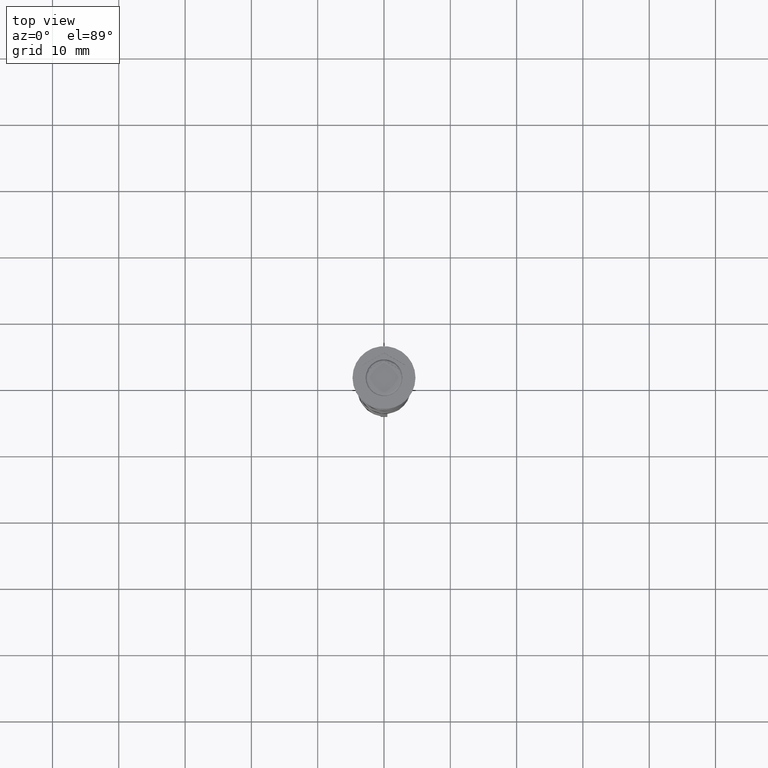
[diagram: clean part render]
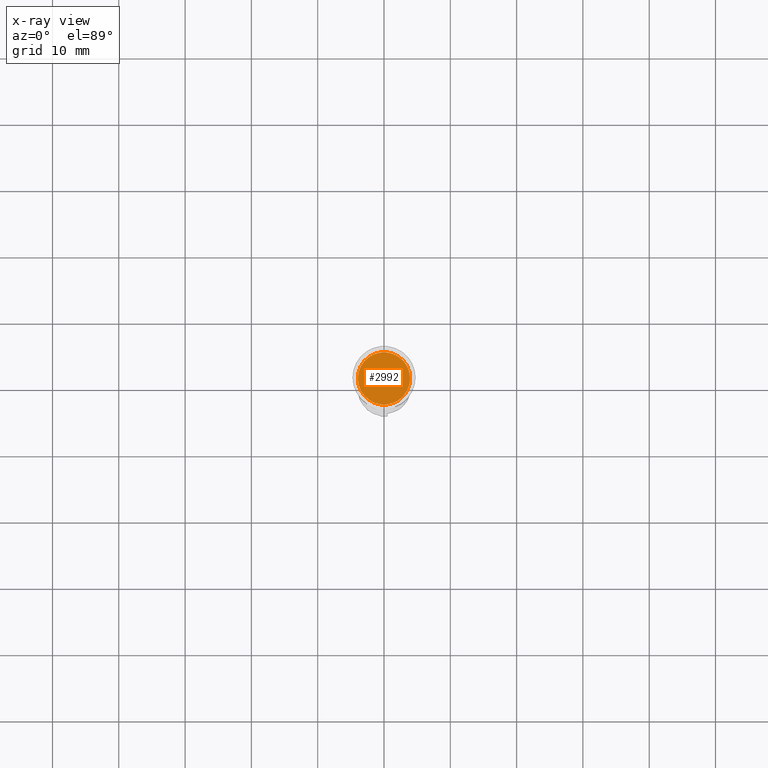
[diagram: x-ray — body ghosted, one internal face saturated and labeled with its STEP entity id]
A machine part, top view, then the same camera in x-ray: the body is ghosted and one INTERNAL B-rep face — a face not visible from any outside direction — is saturated and labeled: STEP entity #2992.
In plain terms, the highlighted planar face has unit normal (0, 0, -1).
Its self-contained STEP definition (entity closure, byte-faithful):
#295 = DIRECTION ( 'NONE',  ( -1.000000000000000000, 0.000000000000000000, 0.000000000000000000 ) ) ;
#543 = AXIS2_PLACEMENT_3D ( 'NONE', #1755, #1480, #2585 ) ;
#545 = ORIENTED_EDGE ( 'NONE', *, *, #2170, .T. ) ;
#928 = PLANE ( 'NONE',  #543 ) ;
#933 = AXIS2_PLACEMENT_3D ( 'NONE', #2222, #1645, #295 ) ;
#1128 = CARTESIAN_POINT ( 'NONE',  ( 0.000000000000000000, 0.000000000000000000, -7.500000000000000000 ) ) ;
#1399 = CARTESIAN_POINT ( 'NONE',  ( -3.950000000000001066, 0.000000000000000000, -7.500000000000000000 ) ) ;
#1480 = DIRECTION ( 'NONE',  ( 0.000000000000000000, 0.000000000000000000, -1.000000000000000000 ) ) ;
#1494 = VERTEX_POINT ( 'NONE', #1399 ) ;
#1585 = EDGE_CURVE ( 'NONE', #1494, #2234, #1752, .T. ) ;
#1645 = DIRECTION ( 'NONE',  ( -0.000000000000000000, -0.000000000000000000, 1.000000000000000000 ) ) ;
#1752 = CIRCLE ( 'NONE', #933, 3.950000000000001066 ) ;
#1755 = CARTESIAN_POINT ( 'NONE',  ( 0.000000000000000000, 0.000000000000000000, -7.500000000000000000 ) ) ;
#2170 = EDGE_CURVE ( 'NONE', #2234, #1494, #2791, .T. ) ;
#2222 = CARTESIAN_POINT ( 'NONE',  ( 0.000000000000000000, 0.000000000000000000, -7.500000000000000000 ) ) ;
#2234 = VERTEX_POINT ( 'NONE', #3476 ) ;
#2288 = EDGE_LOOP ( 'NONE', ( #2660, #545 ) ) ;
#2585 = DIRECTION ( 'NONE',  ( -1.000000000000000000, 0.000000000000000000, -0.000000000000000000 ) ) ;
#2660 = ORIENTED_EDGE ( 'NONE', *, *, #1585, .T. ) ;
#2791 = CIRCLE ( 'NONE', #3131, 3.950000000000001066 ) ;
#2992 = ADVANCED_FACE ( 'NONE', ( #3114 ), #928, .F. ) ;
#3114 = FACE_OUTER_BOUND ( 'NONE', #2288, .T. ) ;
#3131 = AXIS2_PLACEMENT_3D ( 'NONE', #1128, #3280, #3331 ) ;
#3280 = DIRECTION ( 'NONE',  ( -0.000000000000000000, -0.000000000000000000, 1.000000000000000000 ) ) ;
#3331 = DIRECTION ( 'NONE',  ( -1.000000000000000000, 0.000000000000000000, 0.000000000000000000 ) ) ;
#3476 = CARTESIAN_POINT ( 'NONE',  ( 3.950000000000001066, 5.021051876504150343E-16, -7.500000000000000000 ) ) ;